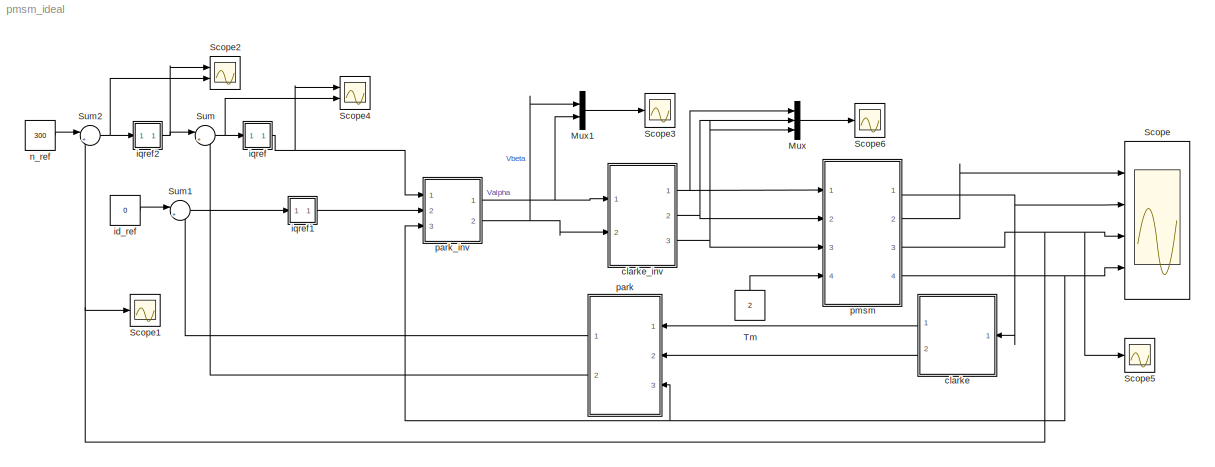
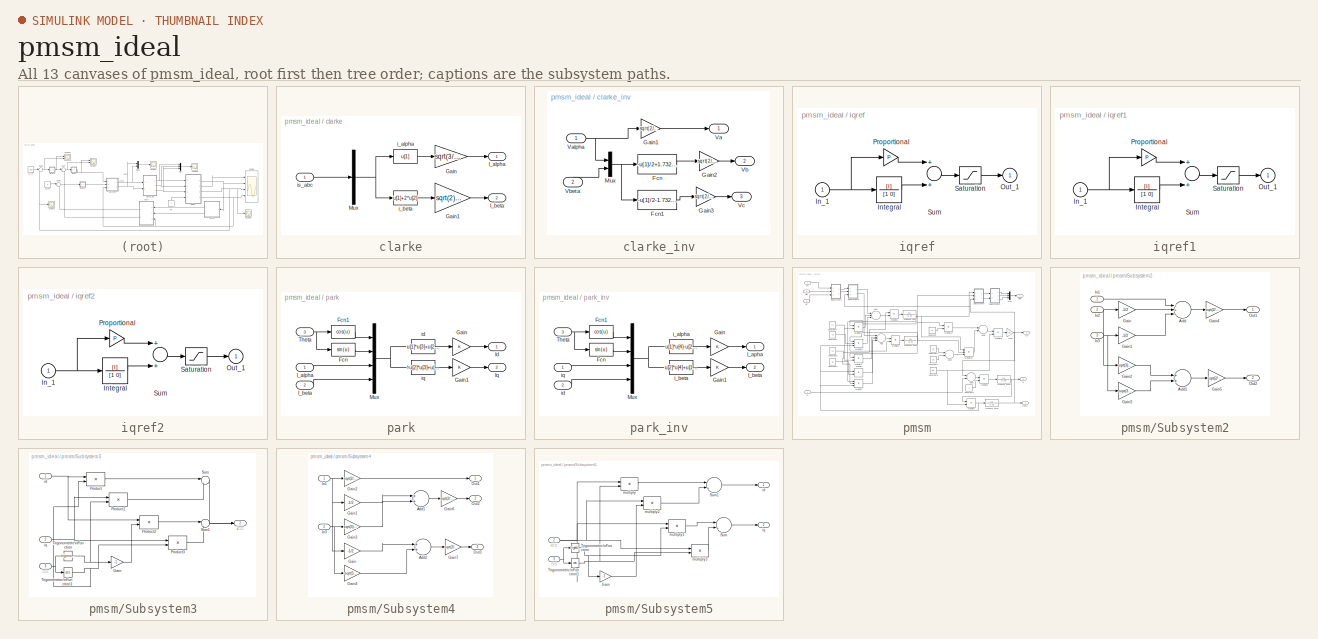
[diagram: thumbnail index - all 13 canvases of the model, root first then tree order]
MODEL pmsm_ideal
KIND model
BLOCK [Mux] Mux
  DisplayOption = bar
  Inputs = 3
  Ports = [3, 1]
BLOCK [Mux] Mux1
  DisplayOption = bar
  Inputs = 2
  Ports = [2, 1]
BLOCK [Scope] Scope
  DataFormat = StructureWithTime
  Decimation = 20
  Floating = off
  LimitDataPoints = off
  NumInputPorts = 4
  Ports = [4]
  SampleTime = 5e-6
  SaveName = ia
  SaveToWorkspace = on
  TimeRange = 0.001206539443785321
  YMax = 60~60~400~300
  YMin = 0~-40~0~0
BLOCK [Scope] Scope1
  DataFormat = StructureWithTime
  Floating = off
  LimitDataPoints = off
  NumInputPorts = 1
  Ports = [1]
  SampleTime = 0
  SaveName = ScopeData1
  TimeRange = 1
  YMax = 6
  YMin = 1
  ZoomMode = yonly
BLOCK [Scope] Scope2
  DataFormat = StructureWithTime
  Floating = off
  LimitDataPoints = off
  NumInputPorts = 2
  Ports = [2]
  SampleTime = 0
  SaveName = ScopeData5
  TimeRange = 1
  YMax = 372.5~49.9375
  YMin = 355~49.9335
  ZoomMode = xonly
BLOCK [Scope] Scope3
  DataFormat = StructureWithTime
  Floating = off
  LimitDataPoints = off
  NumInputPorts = 1
  Ports = [1]
  SampleTime = 0
  TimeRange = 1
  YMax = 350
  YMin = -400
  ZoomMode = xonly
BLOCK [Scope] Scope4
  DataFormat = StructureWithTime
  Floating = off
  LimitDataPoints = off
  NumInputPorts = 2
  Ports = [2]
  SampleTime = 0
  SaveName = ScopeData7
  TimeRange = 1
  YMax = 6~5
  YMin = 1~-5
  ZoomMode = xonly
BLOCK [Scope] Scope5
  DataFormat = Array
  Floating = off
  LimitDataPoints = off
  NumInputPorts = 1
  Ports = [1]
  SampleTime = 0
  SaveName = w1
  SaveToWorkspace = on
  TimeRange = 1
  YMax = 500
  YMin = -500
  ZoomMode = xonly
BLOCK [Scope] Scope6
  DataFormat = StructureWithTime
  Floating = off
  LimitDataPoints = off
  NumInputPorts = 1
  Ports = [1]
  SampleTime = 0
  SaveName = ScopeData2
  TimeRange = 1
  YMax = 500
  YMin = -500
  ZoomMode = xonly
BLOCK [Sum] Sum
  IconShape = round
  InputSameDT = off
  Inputs = |+-
  OutDataType = sfix(16)
  OutDataTypeMode = Inherit via internal rule
  OutDataTypeStr = Inherit: Inherit via internal rule
  OutScaling = 2^0
  Ports = [2, 1]
BLOCK [Sum] Sum1
  IconShape = round
  InputSameDT = off
  Inputs = |+-
  OutDataType = sfix(16)
  OutDataTypeMode = Inherit via internal rule
  OutDataTypeStr = Inherit: Inherit via internal rule
  OutScaling = 2^0
  Ports = [2, 1]
BLOCK [Sum] Sum2
  IconShape = round
  InputSameDT = off
  Inputs = |+-
  OutDataType = sfix(16)
  OutDataTypeMode = Inherit via internal rule
  OutDataTypeStr = Inherit: Inherit via internal rule
  OutScaling = 2^0
  Ports = [2, 1]
BLOCK [Constant] Tm
  OutDataType = sfix(16)
  OutScaling = 2^0
  Value = 2
BLOCK [SubSystem] clarke
  FunctionWithSeparateData = off
  MaskDisplay = \n
  MaskHideContents = off
  MaskIconFrame = on
  MaskIconOpaque = on
  MaskIconRotate = none
  MaskIconUnits = autoscale
  MinAlgLoopOccurrences = off
  Opaque = off
  Ports = [1, 2]
  PropExecContextOutsideSubsystem = off
  RTWSystemCode = Auto
  RequestExecContextInheritance = off
BLOCK [Gain] clarke/Gain
  Gain = sqrt(3/2)
  OutDataType = sfix(16)
  OutScaling = 2^0
  ParameterDataType = sfix(16)
  ParameterScaling = 2^0
BLOCK [Gain] clarke/Gain1
  Gain = sqrt(2)/2
  OutDataType = sfix(16)
  OutScaling = 2^0
  ParameterDataType = sfix(16)
  ParameterScaling = 2^0
BLOCK [Outport] clarke/I_alpha
  IconDisplay = Port number
  InitialOutput = 0
BLOCK [Outport] clarke/I_beta
  IconDisplay = Port number
  InitialOutput = 0
  Port = 2
BLOCK [Mux] clarke/Mux
  Inputs = [3]
  Ports = [1, 1]
BLOCK [Fcn] clarke/i_alpha
  Expr = u[1]
BLOCK [Fcn] clarke/i_beta
  Expr = u[1]+2*u[2]
BLOCK [Inport] clarke/is_abc
  IconDisplay = Port number
  OutDataType = sfix(16)
  OutScaling = 2^0
BLOCK [SubSystem] clarke_inv
  FunctionWithSeparateData = off
  MaskHideContents = off
  MinAlgLoopOccurrences = off
  Opaque = off
  Ports = [2, 3]
  PropExecContextOutsideSubsystem = off
  RTWSystemCode = Auto
  RequestExecContextInheritance = off
BLOCK [Fcn] clarke_inv/Fcn
  Expr = -u[1]/2+1.73205081*u[2]/2
BLOCK [Fcn] clarke_inv/Fcn1
  Expr = -u[1]/2-1.73205081*u[2]/2
BLOCK [Gain] clarke_inv/Gain1
  Gain = sqrt(2/3)
  OutDataType = sfix(16)
  OutScaling = 2^0
  ParameterDataType = sfix(16)
  ParameterScaling = 2^0
BLOCK [Gain] clarke_inv/Gain2
  Gain = sqrt(2/3)
  OutDataType = sfix(16)
  OutScaling = 2^0
  ParameterDataType = sfix(16)
  ParameterScaling = 2^0
BLOCK [Gain] clarke_inv/Gain3
  Gain = sqrt(2/3)
  OutDataType = sfix(16)
  OutScaling = 2^0
  ParameterDataType = sfix(16)
  ParameterScaling = 2^0
BLOCK [Mux] clarke_inv/Mux
  DisplayOption = bar
  Inputs = 2
  Ports = [2, 1]
BLOCK [Outport] clarke_inv/Va
  IconDisplay = Port number
BLOCK [Inport] clarke_inv/Valpha
  IconDisplay = Port number
  OutDataType = sfix(16)
  OutScaling = 2^0
BLOCK [Outport] clarke_inv/Vb
  IconDisplay = Port number
  Port = 2
BLOCK [Inport] clarke_inv/Vbeta
  IconDisplay = Port number
  OutDataType = sfix(16)
  OutScaling = 2^0
  Port = 2
BLOCK [Outport] clarke_inv/Vc
  IconDisplay = Port number
  Port = 3
BLOCK [Constant] id_ref
  OutDataType = sfix(16)
  OutScaling = 2^0
  Value = 0
BLOCK [SubSystem] iqref
  FunctionWithSeparateData = off
  MaskCallbackString = ||
  MaskDisplay = disp('PI')
  MaskEnableString = on,on,on
  MaskHideContents = off
  MaskIconFrame = on
  MaskIconOpaque = on
  MaskIconRotate = none
  MaskIconUnits = autoscale
  MaskInitialization = I=@1;P=@2;sat=@3;min=sat(1);max=sat(2);
  MaskPromptString = Integral|Proportional:|Minimum and maximum outputs:
  MaskStyleString = edit,edit,edit
  MaskTabNameString = ,,
  MaskToolTipString = on,on,on
  MaskTunableValueString = on,on,on
  MaskType = PI Controller
  MaskValueString = 5|10| [-500, 500]
  MaskVarAliasString = ,,
  MaskVisibilityString = on,on,on
  MinAlgLoopOccurrences = off
  Opaque = off
  Ports = [1, 1]
  PropExecContextOutsideSubsystem = off
  RTWSystemCode = Auto
  RequestExecContextInheritance = off
BLOCK [Inport] iqref/In_1
  IconDisplay = Port number
  OutDataType = sfix(16)
  OutScaling = 2^0
BLOCK [TransferFcn] iqref/Integral
  Denominator = [1 0]
  Numerator = [I]
BLOCK [Outport] iqref/Out_1
  IconDisplay = Port number
  InitialOutput = 0
BLOCK [Gain] iqref/Proportional
  Gain = P
  OutDataType = sfix(16)
  OutScaling = 2^0
  ParameterDataType = sfix(16)
  ParameterScaling = 2^0
BLOCK [Saturate] iqref/Saturation
  LowerLimit = min
  UpperLimit = max
BLOCK [Sum] iqref/Sum
  OutDataType = sfix(16)
  OutScaling = 2^0
  Ports = [2, 1]
BLOCK [SubSystem] iqref1
  FunctionWithSeparateData = off
  MaskCallbackString = ||
  MaskDisplay = disp('PI')
  MaskEnableString = on,on,on
  MaskHideContents = off
  MaskIconFrame = on
  MaskIconOpaque = on
  MaskIconRotate = none
  MaskIconUnits = autoscale
  MaskInitialization = I=@1;P=@2;sat=@3;min=sat(1);max=sat(2);
  MaskPromptString = Integral|Proportional:|Minimum and maximum outputs:
  MaskStyleString = edit,edit,edit
  MaskTabNameString = ,,
  MaskToolTipString = on,on,on
  MaskTunableValueString = on,on,on
  MaskType = PI Controller
  MaskValueString = 5|10| [-500, 500]
  MaskVarAliasString = ,,
  MaskVisibilityString = on,on,on
  MinAlgLoopOccurrences = off
  Opaque = off
  Ports = [1, 1]
  PropExecContextOutsideSubsystem = off
  RTWSystemCode = Auto
  RequestExecContextInheritance = off
BLOCK [Inport] iqref1/In_1
  IconDisplay = Port number
  OutDataType = sfix(16)
  OutScaling = 2^0
BLOCK [TransferFcn] iqref1/Integral
  Denominator = [1 0]
  Numerator = [I]
BLOCK [Outport] iqref1/Out_1
  IconDisplay = Port number
  InitialOutput = 0
BLOCK [Gain] iqref1/Proportional
  Gain = P
  OutDataType = sfix(16)
  OutScaling = 2^0
  ParameterDataType = sfix(16)
  ParameterScaling = 2^0
BLOCK [Saturate] iqref1/Saturation
  LowerLimit = min
  UpperLimit = max
BLOCK [Sum] iqref1/Sum
  OutDataType = sfix(16)
  OutScaling = 2^0
  Ports = [2, 1]
BLOCK [SubSystem] iqref2
  FunctionWithSeparateData = off
  MaskCallbackString = ||
  MaskDisplay = disp('PI')
  MaskEnableString = on,on,on
  MaskHideContents = off
  MaskIconFrame = on
  MaskIconOpaque = on
  MaskIconRotate = none
  MaskIconUnits = autoscale
  MaskInitialization = I=@1;P=@2;sat=@3;min=sat(1);max=sat(2);
  MaskPromptString = Integral|Proportional:|Minimum and maximum outputs:
  MaskStyleString = edit,edit,edit
  MaskTabNameString = ,,
  MaskToolTipString = on,on,on
  MaskTunableValueString = on,on,on
  MaskType = PI Controller
  MaskValueString = 5|10| [-30, 30]
  MaskVarAliasString = ,,
  MaskVisibilityString = on,on,on
  MinAlgLoopOccurrences = off
  Opaque = off
  Ports = [1, 1]
  PropExecContextOutsideSubsystem = off
  RTWSystemCode = Auto
  RequestExecContextInheritance = off
BLOCK [Inport] iqref2/In_1
  IconDisplay = Port number
  OutDataType = sfix(16)
  OutScaling = 2^0
BLOCK [TransferFcn] iqref2/Integral
  Denominator = [1 0]
  Numerator = [I]
BLOCK [Outport] iqref2/Out_1
  IconDisplay = Port number
  InitialOutput = 0
BLOCK [Gain] iqref2/Proportional
  Gain = P
  OutDataType = sfix(16)
  OutScaling = 2^0
  ParameterDataType = sfix(16)
  ParameterScaling = 2^0
BLOCK [Saturate] iqref2/Saturation
  LowerLimit = min
  UpperLimit = max
BLOCK [Sum] iqref2/Sum
  OutDataType = sfix(16)
  OutScaling = 2^0
  Ports = [2, 1]
BLOCK [Constant] n_ref
  OutDataType = sfix(16)
  OutScaling = 2^0
  Value = 300
BLOCK [SubSystem] park
  FunctionWithSeparateData = off
  MaskHideContents = off
  MinAlgLoopOccurrences = off
  Opaque = off
  Ports = [3, 2]
  PropExecContextOutsideSubsystem = off
  RTWSystemCode = Auto
  RequestExecContextInheritance = off
BLOCK [Fcn] park/Fcn
  Expr = sin(u)
BLOCK [Fcn] park/Fcn1
  Expr = cos(u)
BLOCK [Gain] park/Gain
  OutDataType = sfix(16)
  OutScaling = 2^0
  ParameterDataType = sfix(16)
  ParameterScaling = 2^0
BLOCK [Gain] park/Gain1
  OutDataType = sfix(16)
  OutScaling = 2^0
  ParameterDataType = sfix(16)
  ParameterScaling = 2^0
BLOCK [Inport] park/I_alpha
  IconDisplay = Port number
  OutDataType = sfix(16)
  OutScaling = 2^0
BLOCK [Inport] park/I_beta
  IconDisplay = Port number
  OutDataType = sfix(16)
  OutScaling = 2^0
  Port = 2
BLOCK [Outport] park/Id
  IconDisplay = Port number
  InitialOutput = 0
BLOCK [Outport] park/Iq
  IconDisplay = Port number
  InitialOutput = 0
  Port = 2
BLOCK [Mux] park/Mux
  Inputs = [1 1 1 1]
  Ports = [4, 1]
BLOCK [Inport] park/Theta
  IconDisplay = Port number
  OutDataType = sfix(16)
  OutScaling = 2^0
  Port = 3
BLOCK [Fcn] park/id
  Expr = u[1]*u[3]+u[2]*u[4]
BLOCK [Fcn] park/iq
  Expr = -u[2]*u[3]+u[1]*u[4]
BLOCK [SubSystem] park_inv
  FunctionWithSeparateData = off
  MaskHideContents = off
  MinAlgLoopOccurrences = off
  Opaque = off
  Ports = [3, 2]
  PropExecContextOutsideSubsystem = off
  RTWSystemCode = Auto
  RequestExecContextInheritance = off
BLOCK [Fcn] park_inv/Fcn
  Expr = sin(u)
BLOCK [Fcn] park_inv/Fcn1
  Expr = cos(u)
BLOCK [Gain] park_inv/Gain
  OutDataType = sfix(16)
  OutScaling = 2^0
  ParameterDataType = sfix(16)
  ParameterScaling = 2^0
BLOCK [Gain] park_inv/Gain1
  OutDataType = sfix(16)
  OutScaling = 2^0
  ParameterDataType = sfix(16)
  ParameterScaling = 2^0
BLOCK [Outport] park_inv/I_apha
  IconDisplay = Port number
  InitialOutput = 0
BLOCK [Outport] park_inv/I_beta
  IconDisplay = Port number
  InitialOutput = 0
  Port = 2
BLOCK [Mux] park_inv/Mux
  Inputs = [1 1 1 1]
  Ports = [4, 1]
BLOCK [Inport] park_inv/Theta
  IconDisplay = Port number
  OutDataType = sfix(16)
  OutScaling = 2^0
  Port = 3
BLOCK [Fcn] park_inv/i_alpha
  Expr = u[1]*u[4]-u[2]*u[3]
BLOCK [Fcn] park_inv/i_beta
  Expr = u[2]*u[4]+u[1]*u[3]
BLOCK [Inport] park_inv/id
  IconDisplay = Port number
  OutDataType = sfix(16)
  OutScaling = 2^0
  Port = 2
BLOCK [Inport] park_inv/iq
  IconDisplay = Port number
  OutDataType = sfix(16)
  OutScaling = 2^0
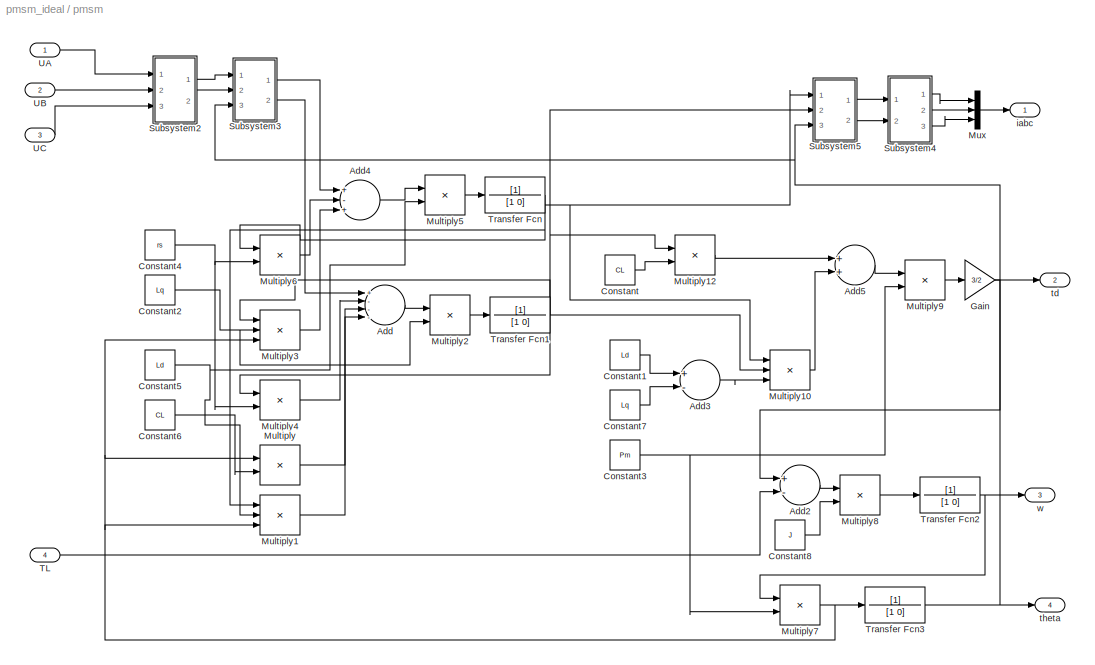
BLOCK [SubSystem] pmsm
  FunctionWithSeparateData = off
  MaskCallbackString = |||||
  MaskDescription = pmsm
  MaskEnableString = on,on,on,on,on,on
  MaskHelp = no
  MaskHideContents = off
  MaskIconFrame = on
  MaskIconOpaque = on
  MaskIconRotate = none
  MaskIconUnits = autoscale
  MaskPromptString = cl|PM|ld|lq|rs|j
  MaskStyleString = edit,edit,edit,edit,edit,edit
  MaskTabNameString = ,,,,,
  MaskToolTipString = on,on,on,on,on,on
  MaskTunableValueString = on,on,on,on,on,on
  MaskType = hao
  MaskValueString = 0.175|4|0.0085|0.0085|2.875|0.0008
  MaskVarAliasString = ,,,,,
  MaskVariables = CL=@1;Pm=@2;Ld=@3;Lq=@4;rs=@5;J=@6;
  MaskVisibilityString = on,on,on,on,on,on
  MinAlgLoopOccurrences = off
  Opaque = off
  Ports = [4, 4]
  PropExecContextOutsideSubsystem = off
  RTWSystemCode = Auto
  RequestExecContextInheritance = off
BLOCK [Sum] pmsm/Add
  InputSameDT = off
  Inputs = +---
  OutDataType = sfix(16)
  OutScaling = 2^-10
  Ports = [4, 1]
BLOCK [Sum] pmsm/Add2
  Inputs = +-
  OutDataType = sfix(16)
  OutScaling = 2^-10
  Ports = [2, 1]
BLOCK [Sum] pmsm/Add3
  Inputs = +-
  OutDataType = sfix(16)
  OutScaling = 2^-10
  Ports = [2, 1]
BLOCK [Sum] pmsm/Add4
  Inputs = +-+
  OutDataType = sfix(16)
  OutScaling = 2^-10
  Ports = [3, 1]
BLOCK [Sum] pmsm/Add5
  OutDataType = sfix(16)
  OutScaling = 2^-10
  Ports = [2, 1]
BLOCK [Constant] pmsm/Constant
  OutDataType = sfix(16)
  OutScaling = 2^0
  Value = CL
BLOCK [Constant] pmsm/Constant1
  OutDataType = sfix(16)
  OutScaling = 2^0
  Value = Ld
BLOCK [Constant] pmsm/Constant2
  OutDataType = sfix(16)
  OutScaling = 2^0
  Value = Lq
BLOCK [Constant] pmsm/Constant3
  OutDataType = sfix(16)
  OutScaling = 2^0
  Value = Pm
BLOCK [Constant] pmsm/Constant4
  OutDataType = sfix(16)
  OutScaling = 2^0
  Value = rs
BLOCK [Constant] pmsm/Constant5
  OutDataType = sfix(16)
  OutScaling = 2^0
  Value = Ld
BLOCK [Constant] pmsm/Constant6
  OutDataType = sfix(16)
  OutScaling = 2^0
  Value = CL
BLOCK [Constant] pmsm/Constant7
  OutDataType = sfix(16)
  OutScaling = 2^0
  Value = Lq
BLOCK [Constant] pmsm/Constant8
  OutDataType = sfix(16)
  OutScaling = 2^0
  Value = J
BLOCK [Gain] pmsm/Gain
  Gain = 3/2
  OutDataType = sfix(16)
  OutScaling = 2^-10
  ParameterDataType = sfix(16)
  ParameterScaling = 2^-15
BLOCK [Product] pmsm/Multiply
  InputSameDT = off
  Inputs = **
  OutDataType = sfix(16)
  OutScaling = 2^-10
  Ports = [2, 1]
  RndMeth = Floor
BLOCK [Product] pmsm/Multiply1
  InputSameDT = off
  Inputs = ***
  OutDataType = sfix(16)
  OutScaling = 2^-10
  Ports = [3, 1]
  RndMeth = Floor
BLOCK [Product] pmsm/Multiply10
  InputSameDT = off
  Inputs = ***
  OutDataType = sfix(16)
  OutScaling = 2^-10
  Ports = [3, 1]
  RndMeth = Floor
BLOCK [Product] pmsm/Multiply12
  InputSameDT = off
  Inputs = **
  OutDataType = sfix(16)
  OutScaling = 2^-10
  Ports = [2, 1]
  RndMeth = Floor
BLOCK [Product] pmsm/Multiply2
  InputSameDT = off
  Inputs = */
  OutDataType = sfix(16)
  OutScaling = 2^-10
  Ports = [2, 1]
  RndMeth = Floor
BLOCK [Product] pmsm/Multiply3
  InputSameDT = off
  Inputs = ***
  OutDataType = sfix(16)
  OutScaling = 2^-10
  Ports = [3, 1]
  RndMeth = Floor
BLOCK [Product] pmsm/Multiply4
  InputSameDT = off
  Inputs = **
  OutDataType = sfix(16)
  OutScaling = 2^-10
  Ports = [2, 1]
  RndMeth = Floor
BLOCK [Product] pmsm/Multiply5
  InputSameDT = off
  Inputs = */
  OutDataType = sfix(16)
  OutScaling = 2^-10
  Ports = [2, 1]
  RndMeth = Floor
BLOCK [Product] pmsm/Multiply6
  InputSameDT = off
  Inputs = **
  OutDataType = sfix(16)
  OutScaling = 2^-10
  Ports = [2, 1]
  RndMeth = Floor
BLOCK [Product] pmsm/Multiply7
  InputSameDT = off
  Inputs = **
  OutDataType = sfix(16)
  OutScaling = 2^-10
  Ports = [2, 1]
  RndMeth = Floor
BLOCK [Product] pmsm/Multiply8
  InputSameDT = off
  Inputs = */
  OutDataType = sfix(16)
  OutScaling = 2^-10
  Ports = [2, 1]
  RndMeth = Floor
BLOCK [Product] pmsm/Multiply9
  InputSameDT = off
  Inputs = **
  OutDataType = sfix(16)
  OutScaling = 2^-10
  Ports = [2, 1]
  RndMeth = Floor
BLOCK [Mux] pmsm/Mux
  DisplayOption = bar
  Inputs = 3
  Ports = [3, 1]
BLOCK [SubSystem] pmsm/Subsystem2
  FunctionWithSeparateData = off
  MaskDescription = 3/2
  MaskDisplay = disp('3/2')
  MaskHelp = no\n\n
  MaskHideContents = off
  MaskIconFrame = on
  MaskIconOpaque = on
  MaskIconRotate = none
  MaskIconUnits = autoscale
  MaskType = hao
  MinAlgLoopOccurrences = off
  Opaque = off
  Ports = [3, 2]
  PropExecContextOutsideSubsystem = off
  RTWSystemCode = Auto
  RequestExecContextInheritance = off
BLOCK [Sum] pmsm/Subsystem2/Add
  Inputs = +++
  OutDataType = sfix(16)
  OutScaling = 2^-10
  Ports = [3, 1]
BLOCK [Sum] pmsm/Subsystem2/Add1
  OutDataType = sfix(16)
  OutScaling = 2^-10
  Ports = [2, 1]
BLOCK [Gain] pmsm/Subsystem2/Gain
  Gain = -1/2
  OutDataType = sfix(16)
  OutScaling = 2^-10
  ParameterDataType = sfix(16)
  ParameterScaling = 2^-15
BLOCK [Gain] pmsm/Subsystem2/Gain1
  Gain = -1/2
  OutDataType = sfix(16)
  OutScaling = 2^-10
  ParameterDataType = sfix(16)
  ParameterScaling = 2^-15
BLOCK [Gain] pmsm/Subsystem2/Gain2
  Gain = sqrt(3)/2
  OutDataType = sfix(16)
  OutScaling = 2^-10
  ParameterDataType = sfix(16)
  ParameterScaling = 2^-15
BLOCK [Gain] pmsm/Subsystem2/Gain3
  Gain = -sqrt(3)/2
  OutDataType = sfix(16)
  OutScaling = 2^-10
  ParameterDataType = sfix(16)
  ParameterScaling = 2^-15
BLOCK [Gain] pmsm/Subsystem2/Gain4
  Gain = sqrt(2/3)
  OutDataType = sfix(16)
  OutScaling = 2^-10
  ParameterDataType = sfix(16)
  ParameterScaling = 2^-15
BLOCK [Gain] pmsm/Subsystem2/Gain5
  Gain = sqrt(2/3)
  OutDataType = sfix(16)
  OutScaling = 2^-10
  ParameterDataType = sfix(16)
  ParameterScaling = 2^-15
BLOCK [Inport] pmsm/Subsystem2/In1
  IconDisplay = Port number
  OutDataType = sfix(16)
  OutScaling = 2^0
BLOCK [Inport] pmsm/Subsystem2/In2
  IconDisplay = Port number
  OutDataType = sfix(16)
  OutScaling = 2^0
  Port = 2
BLOCK [Inport] pmsm/Subsystem2/In3
  IconDisplay = Port number
  OutDataType = sfix(16)
  OutScaling = 2^0
  Port = 3
BLOCK [Outport] pmsm/Subsystem2/Out1
  IconDisplay = Port number
BLOCK [Outport] pmsm/Subsystem2/Out2
  IconDisplay = Port number
  Port = 2
BLOCK [SubSystem] pmsm/Subsystem3
  FunctionWithSeparateData = off
  MaskDescription = qdtoMT
  MaskHelp = none
  MaskHideContents = off
  MaskIconFrame = on
  MaskIconOpaque = on
  MaskIconRotate = none
  MaskIconUnits = autoscale
  MaskType = 2/2
  MinAlgLoopOccurrences = off
  Opaque = off
  Ports = [3, 2]
  PropExecContextOutsideSubsystem = off
  RTWSystemCode = Auto
  RequestExecContextInheritance = off
BLOCK [Gain] pmsm/Subsystem3/Gain
  Gain = -1
  OutDataType = sfix(16)
  OutScaling = 2^0
  ParameterDataType = sfix(16)
  ParameterScaling = 2^0
BLOCK [Product] pmsm/Subsystem3/Product
  InputSameDT = off
  OutDataType = sfix(16)
  OutScaling = 2^0
  Ports = [2, 1]
  RndMeth = Floor
BLOCK [Product] pmsm/Subsystem3/Product1
  InputSameDT = off
  OutDataType = sfix(16)
  OutScaling = 2^0
  Ports = [2, 1]
  RndMeth = Floor
BLOCK [Product] pmsm/Subsystem3/Product2
  InputSameDT = off
  OutDataType = sfix(16)
  OutScaling = 2^0
  Ports = [2, 1]
  RndMeth = Floor
BLOCK [Product] pmsm/Subsystem3/Product3
  InputSameDT = off
  OutDataType = sfix(16)
  OutScaling = 2^0
  Ports = [2, 1]
  RndMeth = Floor
BLOCK [Sum] pmsm/Subsystem3/Sum
  IconShape = round
  Inputs = |++
  OutDataType = sfix(16)
  OutScaling = 2^0
  Ports = [2, 1]
BLOCK [Sum] pmsm/Subsystem3/Sum1
  IconShape = round
  Inputs = |++
  OutDataType = sfix(16)
  OutScaling = 2^0
  Ports = [2, 1]
BLOCK [Trigonometry] pmsm/Subsystem3/Trigonometric\nFunction
  Ports = [1, 1]
BLOCK [Trigonometry] pmsm/Subsystem3/Trigonometric\nFunction1
  Operator = cos
  Ports = [1, 1]
BLOCK [Inport] pmsm/Subsystem3/id
  IconDisplay = Port number
  OutDataType = sfix(16)
  OutScaling = 2^0
BLOCK [Inport] pmsm/Subsystem3/iq
  IconDisplay = Port number
  OutDataType = sfix(16)
  OutScaling = 2^0
  Port = 2
BLOCK [Outport] pmsm/Subsystem3/i¦Á
  IconDisplay = Port number
BLOCK [Outport] pmsm/Subsystem3/i¦Â
  IconDisplay = Port number
  Port = 2
BLOCK [Inport] pmsm/Subsystem3/¦Ë
  IconDisplay = Port number
  OutDataType = sfix(16)
  OutScaling = 2^0
  Port = 3
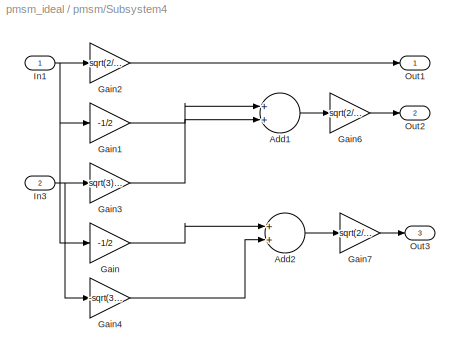
BLOCK [SubSystem] pmsm/Subsystem4
  FunctionWithSeparateData = off
  MaskDescription = 2/3
  MaskDisplay = disp('2/3')
  MaskHelp = npi
  MaskHideContents = off
  MaskIconFrame = on
  MaskIconOpaque = on
  MaskIconRotate = none
  MaskIconUnits = autoscale
  MaskType = hao
  MinAlgLoopOccurrences = off
  Opaque = off
  Ports = [2, 3]
  PropExecContextOutsideSubsystem = off
  RTWSystemCode = Auto
  RequestExecContextInheritance = off
BLOCK [Sum] pmsm/Subsystem4/Add1
  OutDataType = sfix(16)
  OutScaling = 2^-10
  Ports = [2, 1]
BLOCK [Sum] pmsm/Subsystem4/Add2
  OutDataType = sfix(16)
  OutScaling = 2^-10
  Ports = [2, 1]
BLOCK [Gain] pmsm/Subsystem4/Gain
  Gain = -1/2
  OutDataType = sfix(16)
  OutScaling = 2^-10
  ParameterDataType = sfix(16)
  ParameterScaling = 2^-15
BLOCK [Gain] pmsm/Subsystem4/Gain1
  Gain = -1/2
  OutDataType = sfix(16)
  OutScaling = 2^-10
  ParameterDataType = sfix(16)
  ParameterScaling = 2^-15
BLOCK [Gain] pmsm/Subsystem4/Gain2
  Gain = sqrt(2/3)
  OutDataType = sfix(16)
  OutScaling = 2^-10
  ParameterDataType = sfix(16)
  ParameterScaling = 2^-15
BLOCK [Gain] pmsm/Subsystem4/Gain3
  Gain = sqrt(3)/2
  OutDataType = sfix(16)
  OutScaling = 2^-10
  ParameterDataType = sfix(16)
  ParameterScaling = 2^-15
BLOCK [Gain] pmsm/Subsystem4/Gain4
  Gain = -sqrt(3)/2
  OutDataType = sfix(16)
  OutScaling = 2^-10
  ParameterDataType = sfix(16)
  ParameterScaling = 2^-15
BLOCK [Gain] pmsm/Subsystem4/Gain6
  Gain = sqrt(2/3)
  OutDataType = sfix(16)
  OutScaling = 2^-10
  ParameterDataType = sfix(16)
  ParameterScaling = 2^-15
BLOCK [Gain] pmsm/Subsystem4/Gain7
  Gain = sqrt(2/3)
  OutDataType = sfix(16)
  OutScaling = 2^-10
  ParameterDataType = sfix(16)
  ParameterScaling = 2^-15
BLOCK [Inport] pmsm/Subsystem4/In1
  IconDisplay = Port number
  OutDataType = sfix(16)
  OutScaling = 2^0
BLOCK [Inport] pmsm/Subsystem4/In3
  IconDisplay = Port number
  OutDataType = sfix(16)
  OutScaling = 2^0
  Port = 2
BLOCK [Outport] pmsm/Subsystem4/Out1
  IconDisplay = Port number
BLOCK [Outport] pmsm/Subsystem4/Out2
  IconDisplay = Port number
  Port = 2
BLOCK [Outport] pmsm/Subsystem4/Out3
  IconDisplay = Port number
  Port = 3
BLOCK [SubSystem] pmsm/Subsystem5
  FunctionWithSeparateData = off
  MaskDescription = mt-todq
  MaskHelp = no
  MaskHideContents = off
  MaskIconFrame = on
  MaskIconOpaque = on
  MaskIconRotate = none
  MaskIconUnits = autoscale
  MaskType = 2/2
  MinAlgLoopOccurrences = off
  Opaque = off
  Ports = [3, 2]
  PropExecContextOutsideSubsystem = off
  RTWSystemCode = Auto
  RequestExecContextInheritance = off
BLOCK [Gain] pmsm/Subsystem5/Gain
  Gain = -1
  OutDataType = sfix(16)
  OutScaling = 2^0
  ParameterDataType = sfix(16)
  ParameterScaling = 2^0
BLOCK [Sum] pmsm/Subsystem5/Sum
  InputSameDT = off
  Inputs = |++
  OutDataType = sfix(16)
  OutScaling = 2^0
  Ports = [2, 1]
BLOCK [Sum] pmsm/Subsystem5/Sum1
  InputSameDT = off
  Inputs = |++
  OutDataType = sfix(16)
  OutScaling = 2^0
  Ports = [2, 1]
BLOCK [Trigonometry] pmsm/Subsystem5/Trigonometric\nFunction
  Ports = [1, 1]
BLOCK [Trigonometry] pmsm/Subsystem5/Trigonometric\nFunction1
  Operator = cos
  Ports = [1, 1]
BLOCK [Outport] pmsm/Subsystem5/id
  IconDisplay = Port number
BLOCK [Outport] pmsm/Subsystem5/iq
  IconDisplay = Port number
  Port = 2
BLOCK [Inport] pmsm/Subsystem5/i¦Á
  IconDisplay = Port number
  OutDataType = sfix(16)
  OutScaling = 2^0
BLOCK [Inport] pmsm/Subsystem5/i¦Â
  IconDisplay = Port number
  OutDataType = sfix(16)
  OutScaling = 2^0
  Port = 2
BLOCK [Product] pmsm/Subsystem5/multiply
  InputSameDT = off
  OutDataType = sfix(16)
  OutScaling = 2^0
  Ports = [2, 1]
  RndMeth = Floor
BLOCK [Product] pmsm/Subsystem5/multiply1
  InputSameDT = off
  OutDataType = sfix(16)
  OutScaling = 2^0
  Ports = [2, 1]
  RndMeth = Floor
BLOCK [Product] pmsm/Subsystem5/multiply2
  InputSameDT = off
  OutDataType = sfix(16)
  OutScaling = 2^0
  Ports = [2, 1]
  RndMeth = Floor
BLOCK [Product] pmsm/Subsystem5/multiply3
  InputSameDT = off
  OutDataType = sfix(16)
  OutScaling = 2^0
  Ports = [2, 1]
  RndMeth = Floor
BLOCK [Inport] pmsm/Subsystem5/¦Ë
  IconDisplay = Port number
  OutDataType = sfix(16)
  OutScaling = 2^0
  Port = 3
BLOCK [Inport] pmsm/TL
  IconDisplay = Port number
  OutDataType = sfix(16)
  OutScaling = 2^0
  Port = 4
BLOCK [TransferFcn] pmsm/Transfer Fcn
  AbsoluteTolerance = 1e-3
  Denominator = [1 0]
BLOCK [TransferFcn] pmsm/Transfer Fcn1
  Denominator = [1 0]
BLOCK [TransferFcn] pmsm/Transfer Fcn2
  Denominator = [1 0]
BLOCK [TransferFcn] pmsm/Transfer Fcn3
  Denominator = [1 0]
BLOCK [Inport] pmsm/UA
  IconDisplay = Port number
  OutDataType = sfix(16)
  OutScaling = 2^0
BLOCK [Inport] pmsm/UB
  IconDisplay = Port number
  OutDataType = sfix(16)
  OutScaling = 2^0
  Port = 2
BLOCK [Inport] pmsm/UC
  IconDisplay = Port number
  OutDataType = sfix(16)
  OutScaling = 2^0
  Port = 3
BLOCK [Outport] pmsm/iabc
  IconDisplay = Port number
BLOCK [Outport] pmsm/td
  IconDisplay = Port number
  Port = 2
BLOCK [Outport] pmsm/theta
  IconDisplay = Port number
  Port = 4
BLOCK [Outport] pmsm/w
  IconDisplay = Port number
  Port = 3
LINE Mux1:1 -> Scope3:1
LINE Mux:1 -> Scope6:1
LINE Sum1:1 -> iqref1:1
NET Sum2:1 -> Scope2:2, iqref2:1
NET Sum:1 -> Scope4:2, iqref:1
LINE Tm:1 -> pmsm:4
LINE clarke/Gain1:1 -> clarke/I_beta:1
LINE clarke/Gain:1 -> clarke/I_alpha:1
NET clarke/Mux:1 -> clarke/i_alpha:1, clarke/i_beta:1
LINE clarke/i_alpha:1 -> clarke/Gain:1
LINE clarke/i_beta:1 -> clarke/Gain1:1
LINE clarke/is_abc:1 -> clarke/Mux:1
LINE clarke:1 -> park:1
LINE clarke:2 -> park:2
LINE clarke_inv/Fcn1:1 -> clarke_inv/Gain3:1
LINE clarke_inv/Fcn:1 -> clarke_inv/Gain2:1
LINE clarke_inv/Gain1:1 -> clarke_inv/Va:1
LINE clarke_inv/Gain2:1 -> clarke_inv/Vb:1
LINE clarke_inv/Gain3:1 -> clarke_inv/Vc:1
NET clarke_inv/Mux:1 -> clarke_inv/Fcn1:1, clarke_inv/Fcn:1
NET clarke_inv/Valpha:1 -> clarke_inv/Gain1:1, clarke_inv/Mux:1
LINE clarke_inv/Vbeta:1 -> clarke_inv/Mux:2
NET clarke_inv:1 -> Mux:1, pmsm:1
NET clarke_inv:2 -> Mux:2, pmsm:2
NET clarke_inv:3 -> Mux:3, pmsm:3
LINE id_ref:1 -> Sum1:1
NET iqref/In_1:1 -> iqref/Integral:1, iqref/Proportional:1
LINE iqref/Integral:1 -> iqref/Sum:2
LINE iqref/Proportional:1 -> iqref/Sum:1
LINE iqref/Saturation:1 -> iqref/Out_1:1
LINE iqref/Sum:1 -> iqref/Saturation:1
NET iqref1/In_1:1 -> iqref1/Integral:1, iqref1/Proportional:1
LINE iqref1/Integral:1 -> iqref1/Sum:2
LINE iqref1/Proportional:1 -> iqref1/Sum:1
LINE iqref1/Saturation:1 -> iqref1/Out_1:1
LINE iqref1/Sum:1 -> iqref1/Saturation:1
LINE iqref1:1 -> park_inv:2
NET iqref2/In_1:1 -> iqref2/Integral:1, iqref2/Proportional:1
LINE iqref2/Integral:1 -> iqref2/Sum:2
LINE iqref2/Proportional:1 -> iqref2/Sum:1
LINE iqref2/Saturation:1 -> iqref2/Out_1:1
LINE iqref2/Sum:1 -> iqref2/Saturation:1
NET iqref2:1 -> Scope2:1, Sum:1
NET iqref:1 -> Scope4:1, park_inv:1
LINE n_ref:1 -> Sum2:1
LINE park/Fcn1:1 -> park/Mux:1
LINE park/Fcn:1 -> park/Mux:2
LINE park/Gain1:1 -> park/Iq:1
LINE park/Gain:1 -> park/Id:1
LINE park/I_alpha:1 -> park/Mux:3
LINE park/I_beta:1 -> park/Mux:4
NET park/Mux:1 -> park/id:1, park/iq:1
NET park/Theta:1 -> park/Fcn1:1, park/Fcn:1
LINE park/id:1 -> park/Gain:1
LINE park/iq:1 -> park/Gain1:1
LINE park:1 -> Sum1:2
LINE park:2 -> Sum:2
LINE park_inv/Fcn1:1 -> park_inv/Mux:1
LINE park_inv/Fcn:1 -> park_inv/Mux:2
LINE park_inv/Gain1:1 -> park_inv/I_beta:1
LINE park_inv/Gain:1 -> park_inv/I_apha:1
NET park_inv/Mux:1 -> park_inv/i_alpha:1, park_inv/i_beta:1
NET park_inv/Theta:1 -> park_inv/Fcn1:1, park_inv/Fcn:1
LINE park_inv/i_alpha:1 -> park_inv/Gain:1
LINE park_inv/i_beta:1 -> park_inv/Gain1:1
LINE park_inv/id:1 -> park_inv/Mux:4
LINE park_inv/iq:1 -> park_inv/Mux:3
NET park_inv:1 -> Mux1:2, clarke_inv:1
NET park_inv:2 -> Mux1:1, clarke_inv:2
LINE pmsm/Add2:1 -> pmsm/Multiply8:1
LINE pmsm/Add3:1 -> pmsm/Multiply10:3
LINE pmsm/Add4:1 -> pmsm/Multiply5:1
LINE pmsm/Add5:1 -> pmsm/Multiply9:1
LINE pmsm/Add:1 -> pmsm/Multiply2:1
LINE pmsm/Constant1:1 -> pmsm/Add3:1
NET pmsm/Constant2:1 -> pmsm/Multiply2:2, pmsm/Multiply3:2
NET pmsm/Constant3:1 -> pmsm/Multiply7:2, pmsm/Multiply9:2
NET pmsm/Constant4:1 -> pmsm/Multiply4:2, pmsm/Multiply6:2
NET pmsm/Constant5:1 -> pmsm/Multiply1:2, pmsm/Multiply5:2
LINE pmsm/Constant6:1 -> pmsm/Multiply:2
LINE pmsm/Constant7:1 -> pmsm/Add3:2
LINE pmsm/Constant8:1 -> pmsm/Multiply8:2
LINE pmsm/Constant:1 -> pmsm/Multiply12:2
NET pmsm/Gain:1 -> pmsm/Add2:1, pmsm/td:1
LINE pmsm/Multiply10:1 -> pmsm/Add5:2
LINE pmsm/Multiply12:1 -> pmsm/Add5:1
LINE pmsm/Multiply1:1 -> pmsm/Add:4
LINE pmsm/Multiply2:1 -> pmsm/Transfer Fcn1:1
LINE pmsm/Multiply3:1 -> pmsm/Add4:3
LINE pmsm/Multiply4:1 -> pmsm/Add:2
LINE pmsm/Multiply5:1 -> pmsm/Transfer Fcn:1
LINE pmsm/Multiply6:1 -> pmsm/Add4:2
NET pmsm/Multiply7:1 -> pmsm/Multiply1:3, pmsm/Multiply3:3, pmsm/Multiply:1, pmsm/Transfer Fcn3:1
LINE pmsm/Multiply8:1 -> pmsm/Transfer Fcn2:1
LINE pmsm/Multiply9:1 -> pmsm/Gain:1
LINE pmsm/Multiply:1 -> pmsm/Add:3
LINE pmsm/Mux:1 -> pmsm/iabc:1
LINE pmsm/Subsystem2/Add1:1 -> pmsm/Subsystem2/Gain5:1
LINE pmsm/Subsystem2/Add:1 -> pmsm/Subsystem2/Gain4:1
LINE pmsm/Subsystem2/Gain1:1 -> pmsm/Subsystem2/Add:3
LINE pmsm/Subsystem2/Gain2:1 -> pmsm/Subsystem2/Add1:1
LINE pmsm/Subsystem2/Gain3:1 -> pmsm/Subsystem2/Add1:2
LINE pmsm/Subsystem2/Gain4:1 -> pmsm/Subsystem2/Out1:1
LINE pmsm/Subsystem2/Gain5:1 -> pmsm/Subsystem2/Out2:1
LINE pmsm/Subsystem2/Gain:1 -> pmsm/Subsystem2/Add:2
LINE pmsm/Subsystem2/In1:1 -> pmsm/Subsystem2/Add:1
NET pmsm/Subsystem2/In2:1 -> pmsm/Subsystem2/Gain2:1, pmsm/Subsystem2/Gain:1
NET pmsm/Subsystem2/In3:1 -> pmsm/Subsystem2/Gain1:1, pmsm/Subsystem2/Gain3:1
LINE pmsm/Subsystem2:1 -> pmsm/Subsystem3:1
LINE pmsm/Subsystem2:2 -> pmsm/Subsystem3:2
LINE pmsm/Subsystem3/Gain:1 -> pmsm/Subsystem3/Product2:2
LINE pmsm/Subsystem3/Product1:1 -> pmsm/Subsystem3/Sum:2
LINE pmsm/Subsystem3/Product2:1 -> pmsm/Subsystem3/Sum1:1
LINE pmsm/Subsystem3/Product3:1 -> pmsm/Subsystem3/Sum1:2
LINE pmsm/Subsystem3/Product:1 -> pmsm/Subsystem3/Sum:1
LINE pmsm/Subsystem3/Sum1:1 -> pmsm/Subsystem3/i¦Â:1
LINE pmsm/Subsystem3/Sum:1 -> pmsm/Subsystem3/i¦Á:1
NET pmsm/Subsystem3/Trigonometric\nFunction1:1 -> pmsm/Subsystem3/Product3:2, pmsm/Subsystem3/Product:2
NET pmsm/Subsystem3/Trigonometric\nFunction:1 -> pmsm/Subsystem3/Gain:1, pmsm/Subsystem3/Product1:2
NET pmsm/Subsystem3/id:1 -> pmsm/Subsystem3/Product2:1, pmsm/Subsystem3/Product:1
NET pmsm/Subsystem3/iq:1 -> pmsm/Subsystem3/Product1:1, pmsm/Subsystem3/Product3:1
NET pmsm/Subsystem3/¦Ë:1 -> pmsm/Subsystem3/Trigonometric\nFunction1:1, pmsm/Subsystem3/Trigonometric\nFunction:1
LINE pmsm/Subsystem3:1 -> pmsm/Add4:1
LINE pmsm/Subsystem3:2 -> pmsm/Add:1
LINE pmsm/Subsystem4/Add1:1 -> pmsm/Subsystem4/Gain6:1
LINE pmsm/Subsystem4/Add2:1 -> pmsm/Subsystem4/Gain7:1
LINE pmsm/Subsystem4/Gain1:1 -> pmsm/Subsystem4/Add1:1
LINE pmsm/Subsystem4/Gain2:1 -> pmsm/Subsystem4/Out1:1
LINE pmsm/Subsystem4/Gain3:1 -> pmsm/Subsystem4/Add1:2
LINE pmsm/Subsystem4/Gain4:1 -> pmsm/Subsystem4/Add2:2
LINE pmsm/Subsystem4/Gain6:1 -> pmsm/Subsystem4/Out2:1
LINE pmsm/Subsystem4/Gain7:1 -> pmsm/Subsystem4/Out3:1
LINE pmsm/Subsystem4/Gain:1 -> pmsm/Subsystem4/Add2:1
NET pmsm/Subsystem4/In1:1 -> pmsm/Subsystem4/Gain1:1, pmsm/Subsystem4/Gain2:1, pmsm/Subsystem4/Gain:1
NET pmsm/Subsystem4/In3:1 -> pmsm/Subsystem4/Gain3:1, pmsm/Subsystem4/Gain4:1
LINE pmsm/Subsystem4:1 -> pmsm/Mux:1
LINE pmsm/Subsystem4:2 -> pmsm/Mux:2
LINE pmsm/Subsystem4:3 -> pmsm/Mux:3
LINE pmsm/Subsystem5/Gain:1 -> pmsm/Subsystem5/multiply2:2
LINE pmsm/Subsystem5/Sum1:1 -> pmsm/Subsystem5/id:1
LINE pmsm/Subsystem5/Sum:1 -> pmsm/Subsystem5/iq:1
NET pmsm/Subsystem5/Trigonometric\nFunction1:1 -> pmsm/Subsystem5/multiply3:2, pmsm/Subsystem5/multiply:2
NET pmsm/Subsystem5/Trigonometric\nFunction:1 -> pmsm/Subsystem5/Gain:1, pmsm/Subsystem5/multiply1:2
NET pmsm/Subsystem5/i¦Á:1 -> pmsm/Subsystem5/multiply1:1, pmsm/Subsystem5/multiply:1
NET pmsm/Subsystem5/i¦Â:1 -> pmsm/Subsystem5/multiply2:1, pmsm/Subsystem5/multiply3:1
LINE pmsm/Subsystem5/multiply1:1 -> pmsm/Subsystem5/Sum:1
LINE pmsm/Subsystem5/multiply2:1 -> pmsm/Subsystem5/Sum1:2
LINE pmsm/Subsystem5/multiply3:1 -> pmsm/Subsystem5/Sum:2
LINE pmsm/Subsystem5/multiply:1 -> pmsm/Subsystem5/Sum1:1
NET pmsm/Subsystem5/¦Ë:1 -> pmsm/Subsystem5/Trigonometric\nFunction1:1, pmsm/Subsystem5/Trigonometric\nFunction:1
LINE pmsm/Subsystem5:1 -> pmsm/Subsystem4:1
LINE pmsm/Subsystem5:2 -> pmsm/Subsystem4:2
LINE pmsm/TL:1 -> pmsm/Add2:2
NET pmsm/Transfer Fcn1:1 -> pmsm/Multiply10:2, pmsm/Multiply12:1, pmsm/Multiply3:1, pmsm/Multiply4:1, pmsm/Subsystem5:2
NET pmsm/Transfer Fcn2:1 -> pmsm/Multiply7:1, pmsm/w:1
NET pmsm/Transfer Fcn3:1 -> pmsm/Subsystem3:3, pmsm/Subsystem5:3, pmsm/theta:1
NET pmsm/Transfer Fcn:1 -> pmsm/Multiply10:1, pmsm/Multiply1:1, pmsm/Multiply6:1, pmsm/Subsystem5:1
LINE pmsm/UA:1 -> pmsm/Subsystem2:1
LINE pmsm/UB:1 -> pmsm/Subsystem2:2
LINE pmsm/UC:1 -> pmsm/Subsystem2:3
NET pmsm:1 -> Scope:2, clarke:1
LINE pmsm:2 -> Scope:1
NET pmsm:3 -> Scope1:1, Scope5:1, Scope:3, Sum2:2
NET pmsm:4 -> Scope:4, park:3, park_inv:3
note: NET lines group one-source signal fan-out (src -> all destinations, sorted); 1:1 wires keep LINE
